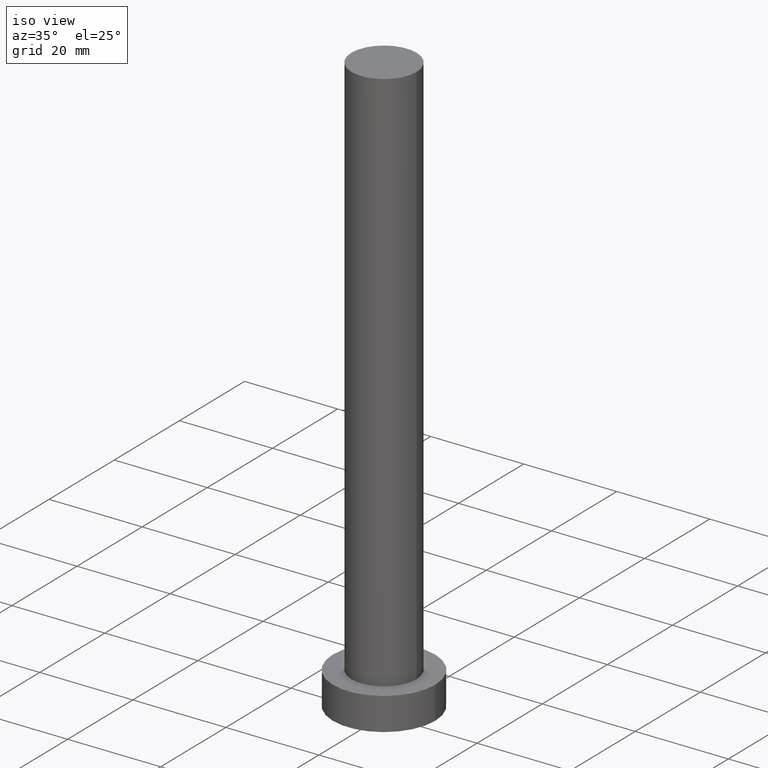
[diagram: clean part render]
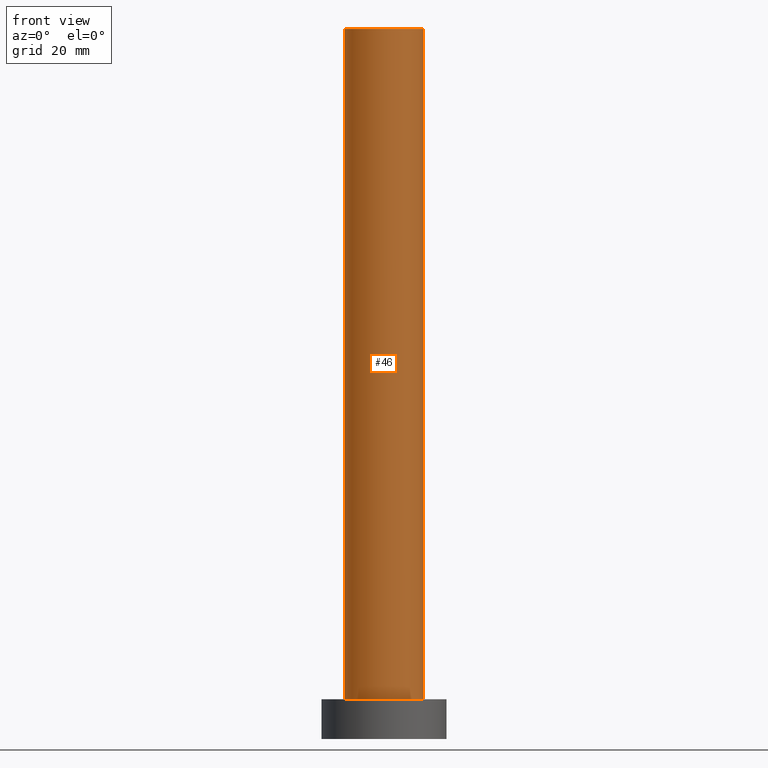
[diagram: tour spotlight — one face highlighted and labeled with its STEP entity id]
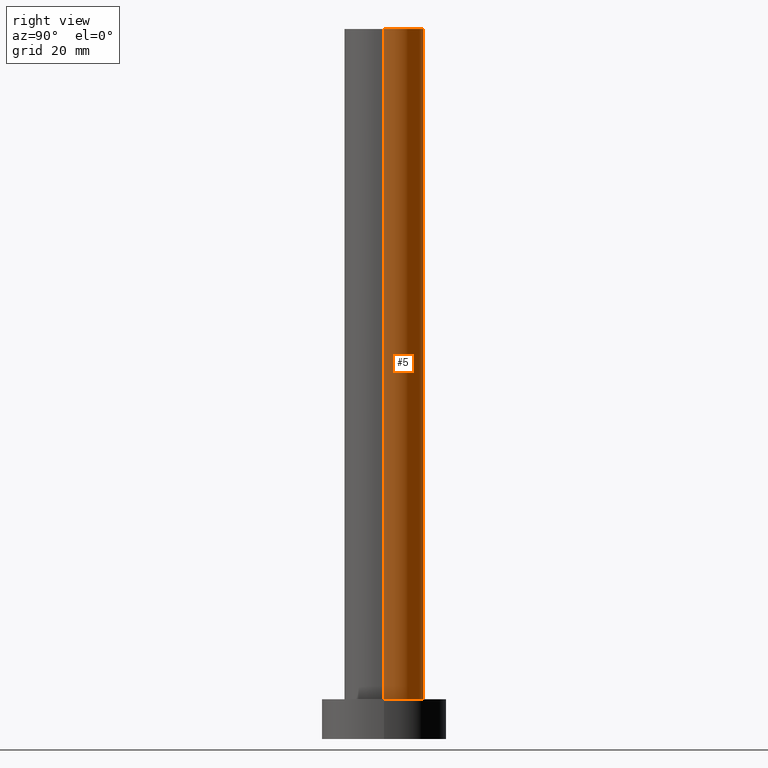
[diagram: tour spotlight — one face highlighted and labeled with its STEP entity id]
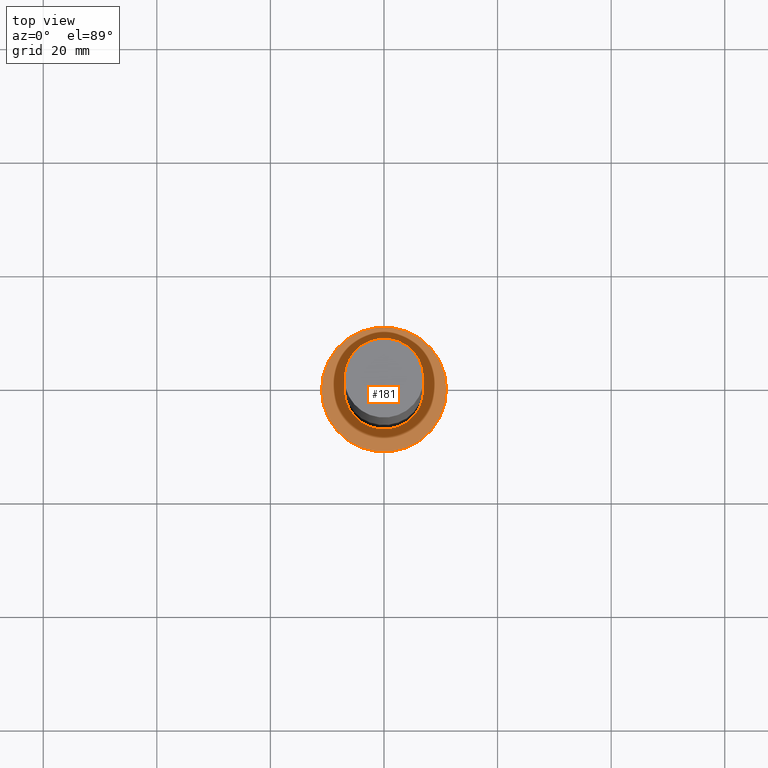
[diagram: tour spotlight — one face highlighted and labeled with its STEP entity id]
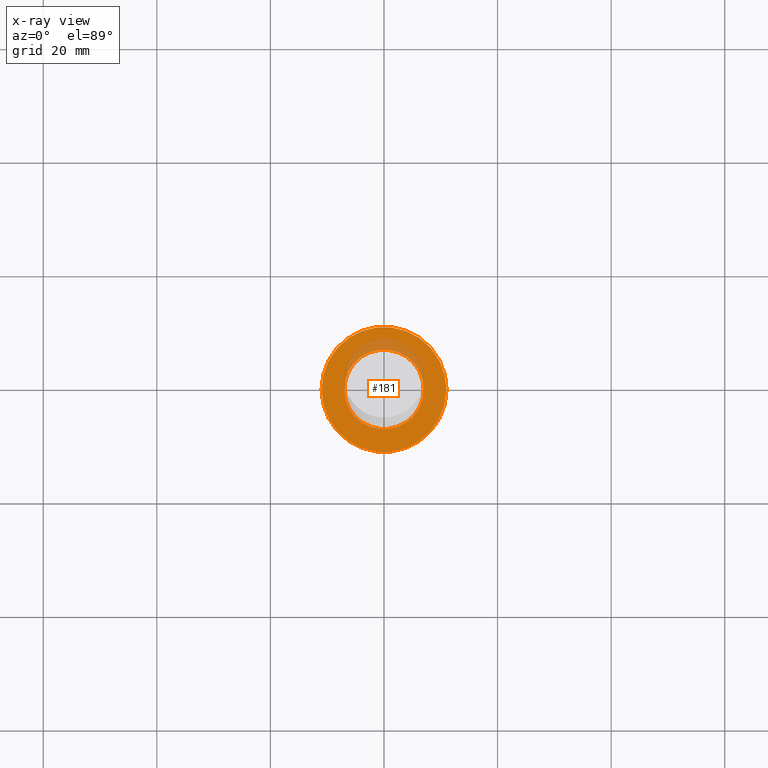
[diagram: x-ray of the same camera — body ghosted, this tour face saturated]
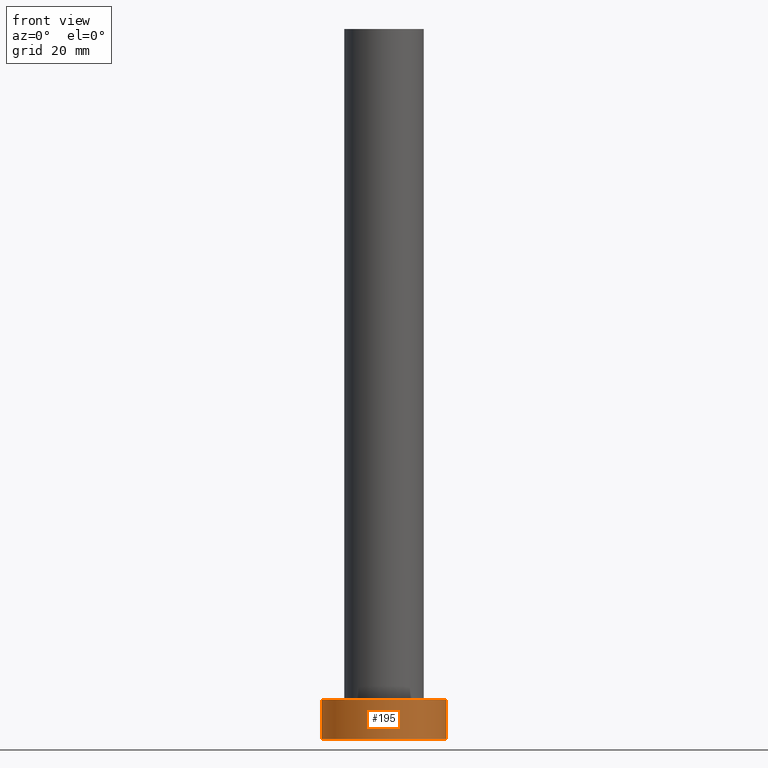
[diagram: tour spotlight — one face highlighted and labeled with its STEP entity id]
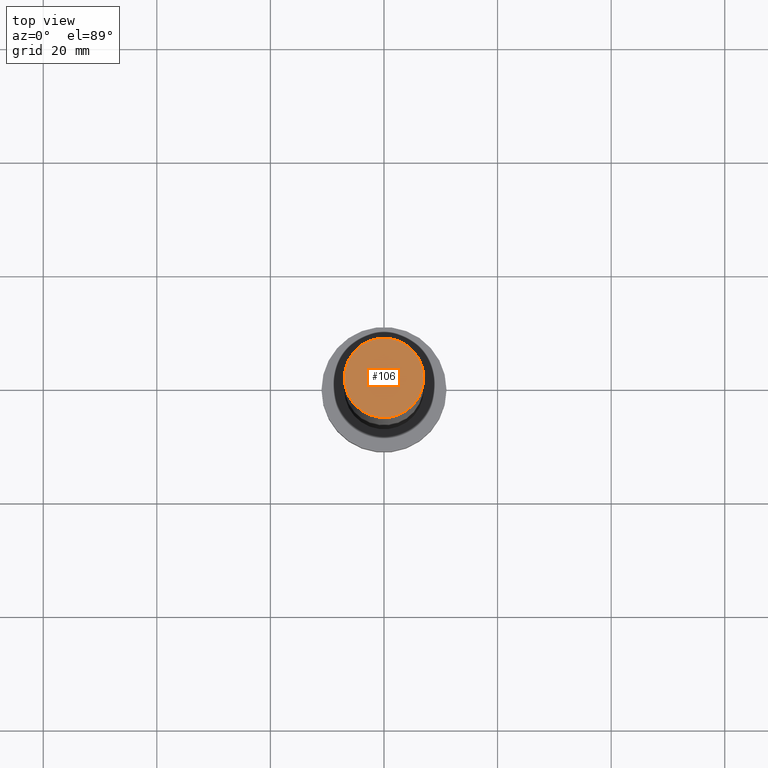
[diagram: tour spotlight — one face highlighted and labeled with its STEP entity id]
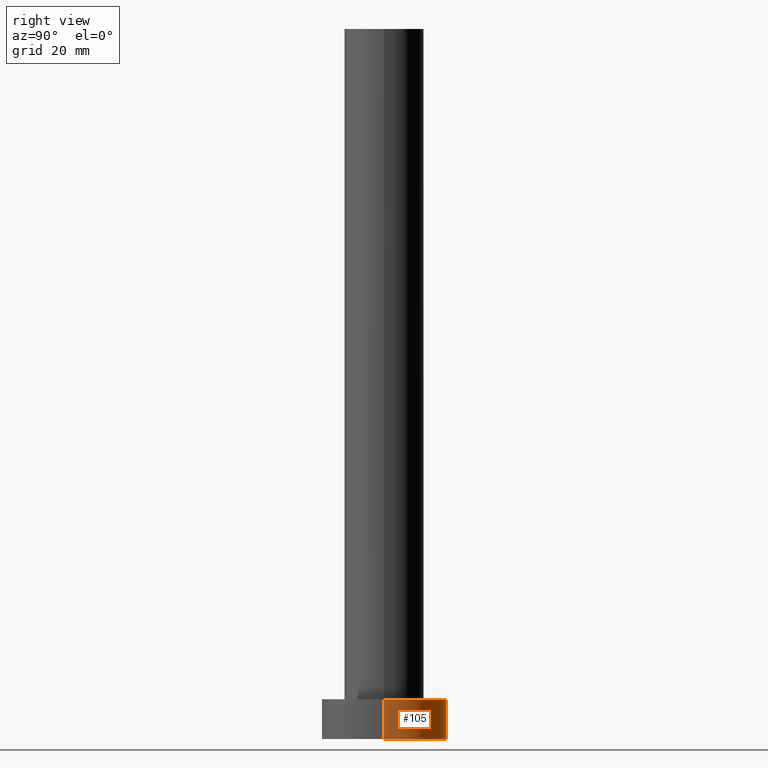
[diagram: tour spotlight — one face highlighted and labeled with its STEP entity id]
A machine part: a face-by-face anatomy tour. The part has 7 B-rep faces; the first image is the clean iso view, then the 6 largest visible faces are spotlighted one at a time (largest first), each with its STEP entity span.

Face 1 — front view, entity #46. In plain terms, the highlighted cylindrical surface (partial cylindrical patch) has radius 7 mm, axis along (-0, -0, -1).
Definition (entity closure, byte-faithful):
#6 = FACE_OUTER_BOUND ( 'NONE', #74, .T. ) ;
#9 = ORIENTED_EDGE ( 'NONE', *, *, #175, .T. ) ;
#18 = CARTESIAN_POINT ( 'NONE',  ( -7.000000000000000888, 0.000000000000000000, 7.000000000000000000 ) ) ;
#24 = DIRECTION ( 'NONE',  ( 0.000000000000000000, 0.000000000000000000, 1.000000000000000000 ) ) ;
#26 = CARTESIAN_POINT ( 'NONE',  ( 7.000000000000000888, 8.572527594031474176E-16, 125.0000000000000000 ) ) ;
#29 = ORIENTED_EDGE ( 'NONE', *, *, #63, .F. ) ;
#35 = DIRECTION ( 'NONE',  ( -1.000000000000000000, 0.000000000000000000, 0.000000000000000000 ) ) ;
#40 = LINE ( 'NONE', #221, #96 ) ;
#46 = ADVANCED_FACE ( 'NONE', ( #6 ), #191, .T. ) ;
#50 = AXIS2_PLACEMENT_3D ( 'NONE', #55, #146, #35 ) ;
#53 = VERTEX_POINT ( 'NONE', #98 ) ;
#55 = CARTESIAN_POINT ( 'NONE',  ( 0.000000000000000000, 0.000000000000000000, 125.0000000000000000 ) ) ;
#57 = LINE ( 'NONE', #125, #228 ) ;
#59 = DIRECTION ( 'NONE',  ( -0.000000000000000000, -0.000000000000000000, -1.000000000000000000 ) ) ;
#63 = EDGE_CURVE ( 'NONE', #186, #53, #57, .T. ) ;
#74 = EDGE_LOOP ( 'NONE', ( #29, #242, #9, #160 ) ) ;
#82 = CARTESIAN_POINT ( 'NONE',  ( 0.000000000000000000, 0.000000000000000000, 7.000000000000000000 ) ) ;
#96 = VECTOR ( 'NONE', #205, 1000.000000000000000 ) ;
#98 = CARTESIAN_POINT ( 'NONE',  ( 7.000000000000000888, 8.572527594031474176E-16, 7.000000000000000000 ) ) ;
#103 = EDGE_CURVE ( 'NONE', #209, #186, #158, .T. ) ;
#116 = VERTEX_POINT ( 'NONE', #18 ) ;
#125 = CARTESIAN_POINT ( 'NONE',  ( 7.000000000000000888, 8.572527594031474176E-16, 125.0000000000000000 ) ) ;
#129 = DIRECTION ( 'NONE',  ( 0.000000000000000000, 0.000000000000000000, 1.000000000000000000 ) ) ;
#136 = EDGE_CURVE ( 'NONE', #116, #53, #202, .T. ) ;
#146 = DIRECTION ( 'NONE',  ( -0.000000000000000000, -0.000000000000000000, -1.000000000000000000 ) ) ;
#158 = CIRCLE ( 'NONE', #194, 7.000000000000000888 ) ;
#160 = ORIENTED_EDGE ( 'NONE', *, *, #136, .T. ) ;
#169 = DIRECTION ( 'NONE',  ( 1.000000000000000000, 0.000000000000000000, 0.000000000000000000 ) ) ;
#175 = EDGE_CURVE ( 'NONE', #209, #116, #40, .T. ) ;
#176 = DIRECTION ( 'NONE',  ( 1.000000000000000000, 0.000000000000000000, 0.000000000000000000 ) ) ;
#186 = VERTEX_POINT ( 'NONE', #26 ) ;
#191 = CYLINDRICAL_SURFACE ( 'NONE', #50, 7.000000000000000888 ) ;
#194 = AXIS2_PLACEMENT_3D ( 'NONE', #247, #24, #176 ) ;
#202 = CIRCLE ( 'NONE', #218, 7.000000000000000888 ) ;
#205 = DIRECTION ( 'NONE',  ( -0.000000000000000000, -0.000000000000000000, -1.000000000000000000 ) ) ;
#209 = VERTEX_POINT ( 'NONE', #210 ) ;
#210 = CARTESIAN_POINT ( 'NONE',  ( -7.000000000000000888, 0.000000000000000000, 125.0000000000000000 ) ) ;
#218 = AXIS2_PLACEMENT_3D ( 'NONE', #82, #129, #169 ) ;
#221 = CARTESIAN_POINT ( 'NONE',  ( -7.000000000000000888, 0.000000000000000000, 125.0000000000000000 ) ) ;
#228 = VECTOR ( 'NONE', #59, 1000.000000000000000 ) ;
#242 = ORIENTED_EDGE ( 'NONE', *, *, #103, .F. ) ;
#247 = CARTESIAN_POINT ( 'NONE',  ( 0.000000000000000000, 0.000000000000000000, 125.0000000000000000 ) ) ;

Face 2 — right view, entity #5. In plain terms, the highlighted cylindrical surface (partial cylindrical patch) has radius 7 mm, axis along (-0, -0, -1).
Definition (entity closure, byte-faithful):
#5 = ADVANCED_FACE ( 'NONE', ( #85 ), #21, .T. ) ;
#8 = DIRECTION ( 'NONE',  ( 1.000000000000000000, 0.000000000000000000, 0.000000000000000000 ) ) ;
#18 = CARTESIAN_POINT ( 'NONE',  ( -7.000000000000000888, 0.000000000000000000, 7.000000000000000000 ) ) ;
#21 = CYLINDRICAL_SURFACE ( 'NONE', #161, 7.000000000000000888 ) ;
#26 = CARTESIAN_POINT ( 'NONE',  ( 7.000000000000000888, 8.572527594031474176E-16, 125.0000000000000000 ) ) ;
#38 = CARTESIAN_POINT ( 'NONE',  ( 0.000000000000000000, 0.000000000000000000, 7.000000000000000000 ) ) ;
#40 = LINE ( 'NONE', #221, #96 ) ;
#51 = ORIENTED_EDGE ( 'NONE', *, *, #75, .F. ) ;
#53 = VERTEX_POINT ( 'NONE', #98 ) ;
#57 = LINE ( 'NONE', #125, #228 ) ;
#59 = DIRECTION ( 'NONE',  ( -0.000000000000000000, -0.000000000000000000, -1.000000000000000000 ) ) ;
#60 = DIRECTION ( 'NONE',  ( -1.000000000000000000, 0.000000000000000000, 0.000000000000000000 ) ) ;
#63 = EDGE_CURVE ( 'NONE', #186, #53, #57, .T. ) ;
#65 = AXIS2_PLACEMENT_3D ( 'NONE', #168, #222, #8 ) ;
#72 = CIRCLE ( 'NONE', #65, 7.000000000000000888 ) ;
#75 = EDGE_CURVE ( 'NONE', #186, #209, #72, .T. ) ;
#77 = AXIS2_PLACEMENT_3D ( 'NONE', #38, #99, #81 ) ;
#81 = DIRECTION ( 'NONE',  ( 1.000000000000000000, 0.000000000000000000, 0.000000000000000000 ) ) ;
#85 = FACE_OUTER_BOUND ( 'NONE', #185, .T. ) ;
#95 = EDGE_CURVE ( 'NONE', #53, #116, #134, .T. ) ;
#96 = VECTOR ( 'NONE', #205, 1000.000000000000000 ) ;
#98 = CARTESIAN_POINT ( 'NONE',  ( 7.000000000000000888, 8.572527594031474176E-16, 7.000000000000000000 ) ) ;
#99 = DIRECTION ( 'NONE',  ( 0.000000000000000000, 0.000000000000000000, 1.000000000000000000 ) ) ;
#112 = ORIENTED_EDGE ( 'NONE', *, *, #63, .T. ) ;
#116 = VERTEX_POINT ( 'NONE', #18 ) ;
#122 = ORIENTED_EDGE ( 'NONE', *, *, #95, .T. ) ;
#125 = CARTESIAN_POINT ( 'NONE',  ( 7.000000000000000888, 8.572527594031474176E-16, 125.0000000000000000 ) ) ;
#127 = CARTESIAN_POINT ( 'NONE',  ( 0.000000000000000000, 0.000000000000000000, 125.0000000000000000 ) ) ;
#134 = CIRCLE ( 'NONE', #77, 7.000000000000000888 ) ;
#141 = ORIENTED_EDGE ( 'NONE', *, *, #175, .F. ) ;
#161 = AXIS2_PLACEMENT_3D ( 'NONE', #127, #171, #60 ) ;
#168 = CARTESIAN_POINT ( 'NONE',  ( 0.000000000000000000, 0.000000000000000000, 125.0000000000000000 ) ) ;
#171 = DIRECTION ( 'NONE',  ( -0.000000000000000000, -0.000000000000000000, -1.000000000000000000 ) ) ;
#175 = EDGE_CURVE ( 'NONE', #209, #116, #40, .T. ) ;
#185 = EDGE_LOOP ( 'NONE', ( #51, #112, #122, #141 ) ) ;
#186 = VERTEX_POINT ( 'NONE', #26 ) ;
#205 = DIRECTION ( 'NONE',  ( -0.000000000000000000, -0.000000000000000000, -1.000000000000000000 ) ) ;
#209 = VERTEX_POINT ( 'NONE', #210 ) ;
#210 = CARTESIAN_POINT ( 'NONE',  ( -7.000000000000000888, 0.000000000000000000, 125.0000000000000000 ) ) ;
#221 = CARTESIAN_POINT ( 'NONE',  ( -7.000000000000000888, 0.000000000000000000, 125.0000000000000000 ) ) ;
#222 = DIRECTION ( 'NONE',  ( 0.000000000000000000, 0.000000000000000000, 1.000000000000000000 ) ) ;
#228 = VECTOR ( 'NONE', #59, 1000.000000000000000 ) ;

Face 3 — top view, entity #181. An x-ray twin of the same camera follows (body ghosted, this face saturated) — the face is partly hidden behind the body. In plain terms, the highlighted planar face has unit normal (0, 0, 1).
Definition (entity closure, byte-faithful):
#18 = CARTESIAN_POINT ( 'NONE',  ( -7.000000000000000888, 0.000000000000000000, 7.000000000000000000 ) ) ;
#34 = ORIENTED_EDGE ( 'NONE', *, *, #225, .T. ) ;
#38 = CARTESIAN_POINT ( 'NONE',  ( 0.000000000000000000, 0.000000000000000000, 7.000000000000000000 ) ) ;
#43 = CIRCLE ( 'NONE', #226, 11.00000000000000000 ) ;
#53 = VERTEX_POINT ( 'NONE', #98 ) ;
#61 = AXIS2_PLACEMENT_3D ( 'NONE', #207, #137, #197 ) ;
#77 = AXIS2_PLACEMENT_3D ( 'NONE', #38, #99, #81 ) ;
#81 = DIRECTION ( 'NONE',  ( 1.000000000000000000, 0.000000000000000000, 0.000000000000000000 ) ) ;
#82 = CARTESIAN_POINT ( 'NONE',  ( 0.000000000000000000, 0.000000000000000000, 7.000000000000000000 ) ) ;
#89 = CARTESIAN_POINT ( 'NONE',  ( 11.00000000000000000, 1.347111479062088405E-15, 7.000000000000000000 ) ) ;
#95 = EDGE_CURVE ( 'NONE', #53, #116, #134, .T. ) ;
#98 = CARTESIAN_POINT ( 'NONE',  ( 7.000000000000000888, 8.572527594031474176E-16, 7.000000000000000000 ) ) ;
#99 = DIRECTION ( 'NONE',  ( 0.000000000000000000, 0.000000000000000000, 1.000000000000000000 ) ) ;
#113 = CARTESIAN_POINT ( 'NONE',  ( 0.000000000000000000, 0.000000000000000000, 7.000000000000000000 ) ) ;
#116 = VERTEX_POINT ( 'NONE', #18 ) ;
#123 = AXIS2_PLACEMENT_3D ( 'NONE', #113, #155, #206 ) ;
#126 = DIRECTION ( 'NONE',  ( 0.000000000000000000, 0.000000000000000000, 1.000000000000000000 ) ) ;
#128 = DIRECTION ( 'NONE',  ( 1.000000000000000000, 0.000000000000000000, 0.000000000000000000 ) ) ;
#129 = DIRECTION ( 'NONE',  ( 0.000000000000000000, 0.000000000000000000, 1.000000000000000000 ) ) ;
#130 = ORIENTED_EDGE ( 'NONE', *, *, #131, .T. ) ;
#131 = EDGE_CURVE ( 'NONE', #215, #187, #43, .T. ) ;
#132 = FACE_BOUND ( 'NONE', #139, .T. ) ;
#134 = CIRCLE ( 'NONE', #77, 7.000000000000000888 ) ;
#136 = EDGE_CURVE ( 'NONE', #116, #53, #202, .T. ) ;
#137 = DIRECTION ( 'NONE',  ( 0.000000000000000000, 0.000000000000000000, 1.000000000000000000 ) ) ;
#139 = EDGE_LOOP ( 'NONE', ( #241, #237 ) ) ;
#148 = CARTESIAN_POINT ( 'NONE',  ( 0.000000000000000000, 0.000000000000000000, 7.000000000000000000 ) ) ;
#150 = CARTESIAN_POINT ( 'NONE',  ( -11.00000000000000000, 0.000000000000000000, 7.000000000000000000 ) ) ;
#155 = DIRECTION ( 'NONE',  ( 0.000000000000000000, 0.000000000000000000, 1.000000000000000000 ) ) ;
#169 = DIRECTION ( 'NONE',  ( 1.000000000000000000, 0.000000000000000000, 0.000000000000000000 ) ) ;
#181 = ADVANCED_FACE ( 'NONE', ( #132, #255 ), #249, .T. ) ;
#187 = VERTEX_POINT ( 'NONE', #89 ) ;
#197 = DIRECTION ( 'NONE',  ( 1.000000000000000000, 0.000000000000000000, -0.000000000000000000 ) ) ;
#202 = CIRCLE ( 'NONE', #218, 7.000000000000000888 ) ;
#206 = DIRECTION ( 'NONE',  ( 1.000000000000000000, 0.000000000000000000, 0.000000000000000000 ) ) ;
#207 = CARTESIAN_POINT ( 'NONE',  ( 0.000000000000000000, 0.000000000000000000, 7.000000000000000000 ) ) ;
#215 = VERTEX_POINT ( 'NONE', #150 ) ;
#218 = AXIS2_PLACEMENT_3D ( 'NONE', #82, #129, #169 ) ;
#225 = EDGE_CURVE ( 'NONE', #187, #215, #234, .T. ) ;
#226 = AXIS2_PLACEMENT_3D ( 'NONE', #148, #126, #128 ) ;
#234 = CIRCLE ( 'NONE', #123, 11.00000000000000000 ) ;
#237 = ORIENTED_EDGE ( 'NONE', *, *, #95, .F. ) ;
#239 = EDGE_LOOP ( 'NONE', ( #130, #34 ) ) ;
#241 = ORIENTED_EDGE ( 'NONE', *, *, #136, .F. ) ;
#249 = PLANE ( 'NONE',  #61 ) ;
#255 = FACE_OUTER_BOUND ( 'NONE', #239, .T. ) ;

Face 4 — front view, entity #195. In plain terms, the highlighted cylindrical surface (partial cylindrical patch) has radius 11 mm, axis along (-0, -0, -1).
Definition (entity closure, byte-faithful):
#3 = ORIENTED_EDGE ( 'NONE', *, *, #49, .T. ) ;
#4 = AXIS2_PLACEMENT_3D ( 'NONE', #154, #48, #62 ) ;
#14 = VERTEX_POINT ( 'NONE', #163 ) ;
#15 = EDGE_CURVE ( 'NONE', #187, #27, #165, .T. ) ;
#19 = DIRECTION ( 'NONE',  ( 1.000000000000000000, 0.000000000000000000, 0.000000000000000000 ) ) ;
#27 = VERTEX_POINT ( 'NONE', #101 ) ;
#41 = ORIENTED_EDGE ( 'NONE', *, *, #131, .F. ) ;
#43 = CIRCLE ( 'NONE', #226, 11.00000000000000000 ) ;
#48 = DIRECTION ( 'NONE',  ( -0.000000000000000000, -0.000000000000000000, -1.000000000000000000 ) ) ;
#49 = EDGE_CURVE ( 'NONE', #14, #27, #87, .T. ) ;
#62 = DIRECTION ( 'NONE',  ( -1.000000000000000000, 0.000000000000000000, 0.000000000000000000 ) ) ;
#68 = FACE_OUTER_BOUND ( 'NONE', #94, .T. ) ;
#83 = CARTESIAN_POINT ( 'NONE',  ( -11.00000000000000000, 0.000000000000000000, 7.000000000000000000 ) ) ;
#87 = CIRCLE ( 'NONE', #200, 11.00000000000000000 ) ;
#89 = CARTESIAN_POINT ( 'NONE',  ( 11.00000000000000000, 1.347111479062088405E-15, 7.000000000000000000 ) ) ;
#94 = EDGE_LOOP ( 'NONE', ( #217, #41, #156, #3 ) ) ;
#97 = VECTOR ( 'NONE', #170, 1000.000000000000000 ) ;
#100 = EDGE_CURVE ( 'NONE', #215, #14, #246, .T. ) ;
#101 = CARTESIAN_POINT ( 'NONE',  ( 11.00000000000000000, 1.347111479062088405E-15, 0.000000000000000000 ) ) ;
#124 = CARTESIAN_POINT ( 'NONE',  ( 0.000000000000000000, 0.000000000000000000, 0.000000000000000000 ) ) ;
#126 = DIRECTION ( 'NONE',  ( 0.000000000000000000, 0.000000000000000000, 1.000000000000000000 ) ) ;
#128 = DIRECTION ( 'NONE',  ( 1.000000000000000000, 0.000000000000000000, 0.000000000000000000 ) ) ;
#131 = EDGE_CURVE ( 'NONE', #215, #187, #43, .T. ) ;
#148 = CARTESIAN_POINT ( 'NONE',  ( 0.000000000000000000, 0.000000000000000000, 7.000000000000000000 ) ) ;
#150 = CARTESIAN_POINT ( 'NONE',  ( -11.00000000000000000, 0.000000000000000000, 7.000000000000000000 ) ) ;
#154 = CARTESIAN_POINT ( 'NONE',  ( 0.000000000000000000, 0.000000000000000000, 7.000000000000000000 ) ) ;
#156 = ORIENTED_EDGE ( 'NONE', *, *, #100, .T. ) ;
#163 = CARTESIAN_POINT ( 'NONE',  ( -11.00000000000000000, 0.000000000000000000, 0.000000000000000000 ) ) ;
#165 = LINE ( 'NONE', #189, #199 ) ;
#170 = DIRECTION ( 'NONE',  ( -0.000000000000000000, -0.000000000000000000, -1.000000000000000000 ) ) ;
#187 = VERTEX_POINT ( 'NONE', #89 ) ;
#189 = CARTESIAN_POINT ( 'NONE',  ( 11.00000000000000000, 1.347111479062088405E-15, 7.000000000000000000 ) ) ;
#195 = ADVANCED_FACE ( 'NONE', ( #68 ), #252, .T. ) ;
#199 = VECTOR ( 'NONE', #223, 1000.000000000000000 ) ;
#200 = AXIS2_PLACEMENT_3D ( 'NONE', #124, #243, #19 ) ;
#215 = VERTEX_POINT ( 'NONE', #150 ) ;
#217 = ORIENTED_EDGE ( 'NONE', *, *, #15, .F. ) ;
#223 = DIRECTION ( 'NONE',  ( -0.000000000000000000, -0.000000000000000000, -1.000000000000000000 ) ) ;
#226 = AXIS2_PLACEMENT_3D ( 'NONE', #148, #126, #128 ) ;
#243 = DIRECTION ( 'NONE',  ( 0.000000000000000000, 0.000000000000000000, 1.000000000000000000 ) ) ;
#246 = LINE ( 'NONE', #83, #97 ) ;
#252 = CYLINDRICAL_SURFACE ( 'NONE', #4, 11.00000000000000000 ) ;

Face 5 — top view, entity #106. In plain terms, the highlighted planar face has unit normal (0, 0, 1).
Definition (entity closure, byte-faithful):
#8 = DIRECTION ( 'NONE',  ( 1.000000000000000000, 0.000000000000000000, 0.000000000000000000 ) ) ;
#17 = AXIS2_PLACEMENT_3D ( 'NONE', #203, #42, #78 ) ;
#24 = DIRECTION ( 'NONE',  ( 0.000000000000000000, 0.000000000000000000, 1.000000000000000000 ) ) ;
#26 = CARTESIAN_POINT ( 'NONE',  ( 7.000000000000000888, 8.572527594031474176E-16, 125.0000000000000000 ) ) ;
#42 = DIRECTION ( 'NONE',  ( 0.000000000000000000, 0.000000000000000000, 1.000000000000000000 ) ) ;
#58 = PLANE ( 'NONE',  #17 ) ;
#65 = AXIS2_PLACEMENT_3D ( 'NONE', #168, #222, #8 ) ;
#69 = EDGE_LOOP ( 'NONE', ( #76, #162 ) ) ;
#72 = CIRCLE ( 'NONE', #65, 7.000000000000000888 ) ;
#75 = EDGE_CURVE ( 'NONE', #186, #209, #72, .T. ) ;
#76 = ORIENTED_EDGE ( 'NONE', *, *, #103, .T. ) ;
#78 = DIRECTION ( 'NONE',  ( 1.000000000000000000, 0.000000000000000000, -0.000000000000000000 ) ) ;
#103 = EDGE_CURVE ( 'NONE', #209, #186, #158, .T. ) ;
#106 = ADVANCED_FACE ( 'NONE', ( #149 ), #58, .T. ) ;
#149 = FACE_OUTER_BOUND ( 'NONE', #69, .T. ) ;
#158 = CIRCLE ( 'NONE', #194, 7.000000000000000888 ) ;
#162 = ORIENTED_EDGE ( 'NONE', *, *, #75, .T. ) ;
#168 = CARTESIAN_POINT ( 'NONE',  ( 0.000000000000000000, 0.000000000000000000, 125.0000000000000000 ) ) ;
#176 = DIRECTION ( 'NONE',  ( 1.000000000000000000, 0.000000000000000000, 0.000000000000000000 ) ) ;
#186 = VERTEX_POINT ( 'NONE', #26 ) ;
#194 = AXIS2_PLACEMENT_3D ( 'NONE', #247, #24, #176 ) ;
#203 = CARTESIAN_POINT ( 'NONE',  ( 0.000000000000000000, 0.000000000000000000, 125.0000000000000000 ) ) ;
#209 = VERTEX_POINT ( 'NONE', #210 ) ;
#210 = CARTESIAN_POINT ( 'NONE',  ( -7.000000000000000888, 0.000000000000000000, 125.0000000000000000 ) ) ;
#222 = DIRECTION ( 'NONE',  ( 0.000000000000000000, 0.000000000000000000, 1.000000000000000000 ) ) ;
#247 = CARTESIAN_POINT ( 'NONE',  ( 0.000000000000000000, 0.000000000000000000, 125.0000000000000000 ) ) ;

Face 6 — right view, entity #105. In plain terms, the highlighted cylindrical surface (partial cylindrical patch) has radius 11 mm, axis along (-0, -0, -1).
Definition (entity closure, byte-faithful):
#12 = CARTESIAN_POINT ( 'NONE',  ( 0.000000000000000000, 0.000000000000000000, 7.000000000000000000 ) ) ;
#13 = DIRECTION ( 'NONE',  ( 0.000000000000000000, 0.000000000000000000, 1.000000000000000000 ) ) ;
#14 = VERTEX_POINT ( 'NONE', #163 ) ;
#15 = EDGE_CURVE ( 'NONE', #187, #27, #165, .T. ) ;
#20 = ORIENTED_EDGE ( 'NONE', *, *, #192, .T. ) ;
#23 = AXIS2_PLACEMENT_3D ( 'NONE', #92, #13, #86 ) ;
#27 = VERTEX_POINT ( 'NONE', #101 ) ;
#36 = AXIS2_PLACEMENT_3D ( 'NONE', #12, #88, #232 ) ;
#83 = CARTESIAN_POINT ( 'NONE',  ( -11.00000000000000000, 0.000000000000000000, 7.000000000000000000 ) ) ;
#86 = DIRECTION ( 'NONE',  ( 1.000000000000000000, 0.000000000000000000, 0.000000000000000000 ) ) ;
#88 = DIRECTION ( 'NONE',  ( -0.000000000000000000, -0.000000000000000000, -1.000000000000000000 ) ) ;
#89 = CARTESIAN_POINT ( 'NONE',  ( 11.00000000000000000, 1.347111479062088405E-15, 7.000000000000000000 ) ) ;
#92 = CARTESIAN_POINT ( 'NONE',  ( 0.000000000000000000, 0.000000000000000000, 0.000000000000000000 ) ) ;
#97 = VECTOR ( 'NONE', #170, 1000.000000000000000 ) ;
#100 = EDGE_CURVE ( 'NONE', #215, #14, #246, .T. ) ;
#101 = CARTESIAN_POINT ( 'NONE',  ( 11.00000000000000000, 1.347111479062088405E-15, 0.000000000000000000 ) ) ;
#104 = ORIENTED_EDGE ( 'NONE', *, *, #100, .F. ) ;
#105 = ADVANCED_FACE ( 'NONE', ( #109 ), #198, .T. ) ;
#108 = CIRCLE ( 'NONE', #23, 11.00000000000000000 ) ;
#109 = FACE_OUTER_BOUND ( 'NONE', #233, .T. ) ;
#113 = CARTESIAN_POINT ( 'NONE',  ( 0.000000000000000000, 0.000000000000000000, 7.000000000000000000 ) ) ;
#123 = AXIS2_PLACEMENT_3D ( 'NONE', #113, #155, #206 ) ;
#147 = ORIENTED_EDGE ( 'NONE', *, *, #225, .F. ) ;
#150 = CARTESIAN_POINT ( 'NONE',  ( -11.00000000000000000, 0.000000000000000000, 7.000000000000000000 ) ) ;
#155 = DIRECTION ( 'NONE',  ( 0.000000000000000000, 0.000000000000000000, 1.000000000000000000 ) ) ;
#163 = CARTESIAN_POINT ( 'NONE',  ( -11.00000000000000000, 0.000000000000000000, 0.000000000000000000 ) ) ;
#165 = LINE ( 'NONE', #189, #199 ) ;
#170 = DIRECTION ( 'NONE',  ( -0.000000000000000000, -0.000000000000000000, -1.000000000000000000 ) ) ;
#187 = VERTEX_POINT ( 'NONE', #89 ) ;
#189 = CARTESIAN_POINT ( 'NONE',  ( 11.00000000000000000, 1.347111479062088405E-15, 7.000000000000000000 ) ) ;
#192 = EDGE_CURVE ( 'NONE', #27, #14, #108, .T. ) ;
#198 = CYLINDRICAL_SURFACE ( 'NONE', #36, 11.00000000000000000 ) ;
#199 = VECTOR ( 'NONE', #223, 1000.000000000000000 ) ;
#206 = DIRECTION ( 'NONE',  ( 1.000000000000000000, 0.000000000000000000, 0.000000000000000000 ) ) ;
#215 = VERTEX_POINT ( 'NONE', #150 ) ;
#220 = ORIENTED_EDGE ( 'NONE', *, *, #15, .T. ) ;
#223 = DIRECTION ( 'NONE',  ( -0.000000000000000000, -0.000000000000000000, -1.000000000000000000 ) ) ;
#225 = EDGE_CURVE ( 'NONE', #187, #215, #234, .T. ) ;
#232 = DIRECTION ( 'NONE',  ( -1.000000000000000000, 0.000000000000000000, 0.000000000000000000 ) ) ;
#233 = EDGE_LOOP ( 'NONE', ( #147, #220, #20, #104 ) ) ;
#234 = CIRCLE ( 'NONE', #123, 11.00000000000000000 ) ;
#246 = LINE ( 'NONE', #83, #97 ) ;